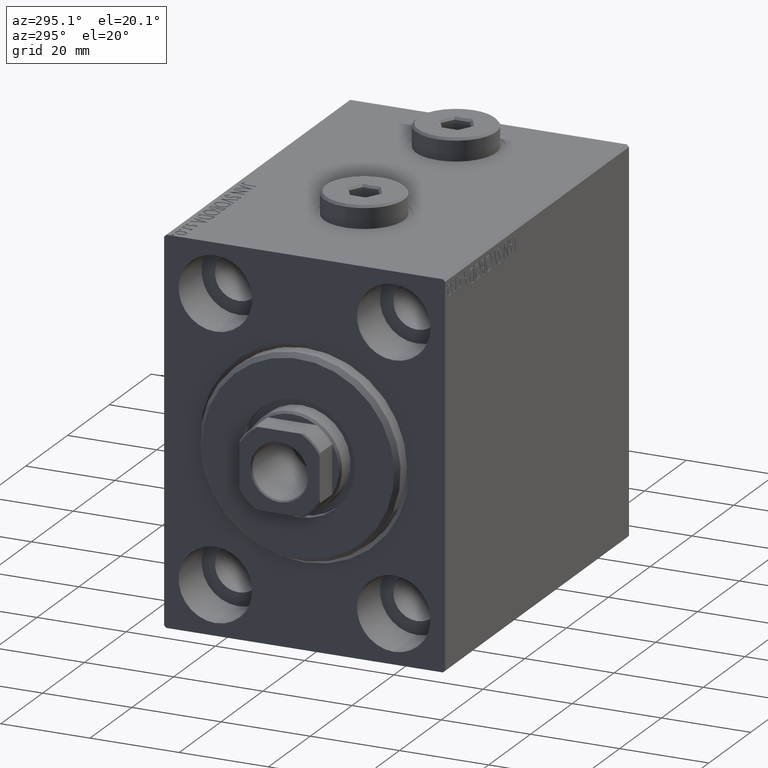
[diagram: clean part render]
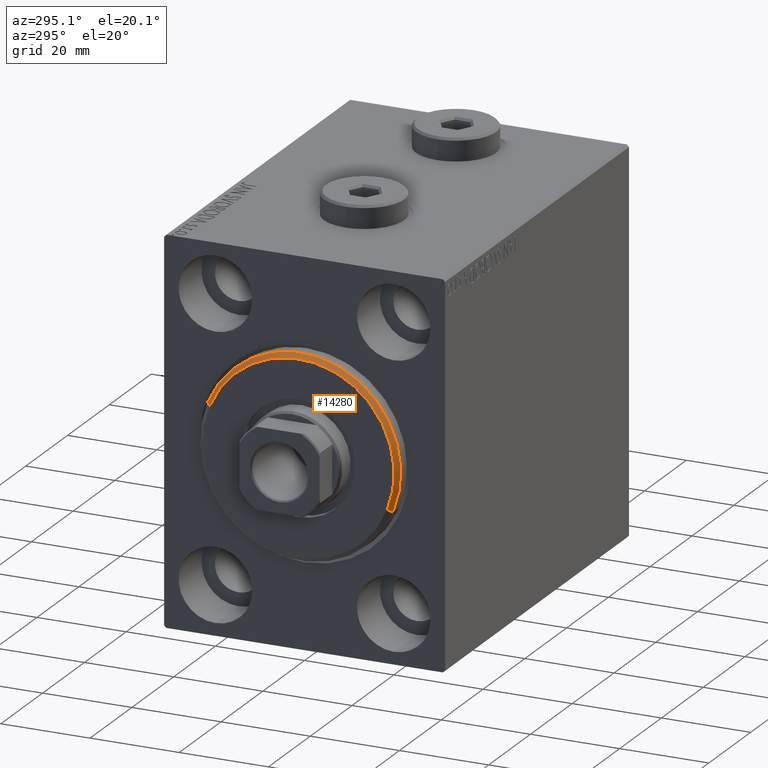
[diagram: same view with one face highlighted and labeled with its STEP entity id]
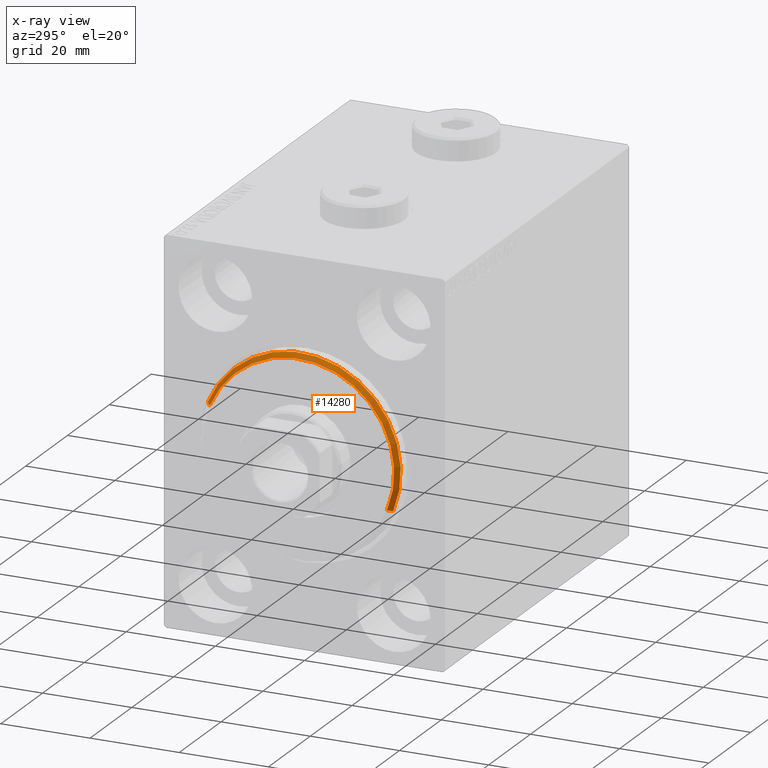
[diagram: x-ray of the same camera — body ghosted, the highlighted face saturated]
A machine part, auxiliary view. The second image highlights one B-rep face of the part: STEP entity #14280.
The next image is the same camera in x-ray: the body ghosted, the highlighted face saturated — about 0% of this face is hidden behind the body in this view.
In plain terms, the highlighted conical surface has half-angle 45 deg.
Its self-contained STEP definition (entity closure, byte-faithful):
#1107 = EDGE_CURVE ( 'NONE', #38930, #14992, #43931, .T. ) ;
#2019 = CARTESIAN_POINT ( 'NONE',  ( 1.999999999999999112, 2.755455298081545172E-15, -22.50000000000000355 ) ) ;
#4481 = DIRECTION ( 'NONE',  ( 0.000000000000000000, 0.000000000000000000, 1.000000000000000000 ) ) ;
#7680 = DIRECTION ( 'NONE',  ( -1.000000000000000000, 0.000000000000000000, 0.000000000000000000 ) ) ;
#8233 = EDGE_CURVE ( 'NONE', #11279, #14992, #8292, .T. ) ;
#8292 = CIRCLE ( 'NONE', #38231, 22.50000000000000355 ) ;
#11279 = VERTEX_POINT ( 'NONE', #2019 ) ;
#13276 = ORIENTED_EDGE ( 'NONE', *, *, #17114, .F. ) ;
#14280 = ADVANCED_FACE ( 'NONE', ( #28954 ), #23041, .T. ) ;
#14992 = VERTEX_POINT ( 'NONE', #15963 ) ;
#15963 = CARTESIAN_POINT ( 'NONE',  ( 1.999999999999999112, 0.000000000000000000, 22.50000000000000355 ) ) ;
#17114 = EDGE_CURVE ( 'NONE', #38930, #43309, #44282, .T. ) ;
#19620 = ORIENTED_EDGE ( 'NONE', *, *, #29865, .F. ) ;
#19896 = VECTOR ( 'NONE', #37072, 1000.000000000000000 ) ;
#23041 = CONICAL_SURFACE ( 'NONE', #43465, 21.50000000000000355, 0.7853981633974466137 ) ;
#23226 = VECTOR ( 'NONE', #44501, 1000.000000000000000 ) ;
#23301 = DIRECTION ( 'NONE',  ( 1.000000000000000000, -0.000000000000000000, 0.000000000000000000 ) ) ;
#25520 = CARTESIAN_POINT ( 'NONE',  ( 3.000000000000000000, 0.000000000000000000, 0.000000000000000000 ) ) ;
#26577 = CARTESIAN_POINT ( 'NONE',  ( 3.000000000000000000, 0.000000000000000000, 21.50000000000000355 ) ) ;
#28631 = DIRECTION ( 'NONE',  ( 0.000000000000000000, 0.000000000000000000, -1.000000000000000000 ) ) ;
#28954 = FACE_OUTER_BOUND ( 'NONE', #36901, .T. ) ;
#29865 = EDGE_CURVE ( 'NONE', #43309, #11279, #44726, .T. ) ;
#32383 = CARTESIAN_POINT ( 'NONE',  ( 3.000000000000000000, 2.694222958124177598E-15, -21.50000000000000355 ) ) ;
#33149 = DIRECTION ( 'NONE',  ( 0.000000000000000000, 0.000000000000000000, -1.000000000000000000 ) ) ;
#35698 = CARTESIAN_POINT ( 'NONE',  ( 1.999999999999999112, 0.000000000000000000, 0.000000000000000000 ) ) ;
#36633 = ORIENTED_EDGE ( 'NONE', *, *, #1107, .T. ) ;
#36779 = CARTESIAN_POINT ( 'NONE',  ( 3.000000000000000000, 0.000000000000000000, 0.000000000000000000 ) ) ;
#36901 = EDGE_LOOP ( 'NONE', ( #19620, #13276, #36633, #42351 ) ) ;
#37072 = DIRECTION ( 'NONE',  ( -0.7071067811865487940, 0.000000000000000000, 0.7071067811865463515 ) ) ;
#38231 = AXIS2_PLACEMENT_3D ( 'NONE', #35698, #42339, #28631 ) ;
#38930 = VERTEX_POINT ( 'NONE', #43600 ) ;
#40858 = CARTESIAN_POINT ( 'NONE',  ( 3.000000000000000000, 2.632990618166810024E-15, -21.50000000000000355 ) ) ;
#42339 = DIRECTION ( 'NONE',  ( -1.000000000000000000, 0.000000000000000000, 0.000000000000000000 ) ) ;
#42351 = ORIENTED_EDGE ( 'NONE', *, *, #8233, .F. ) ;
#43309 = VERTEX_POINT ( 'NONE', #32383 ) ;
#43465 = AXIS2_PLACEMENT_3D ( 'NONE', #25520, #7680, #4481 ) ;
#43600 = CARTESIAN_POINT ( 'NONE',  ( 3.000000000000000000, 0.000000000000000000, 21.50000000000000355 ) ) ;
#43931 = LINE ( 'NONE', #26577, #19896 ) ;
#44282 = CIRCLE ( 'NONE', #45001, 21.50000000000000355 ) ;
#44501 = DIRECTION ( 'NONE',  ( -0.7071067811865487940, 8.659560562354919300E-17, -0.7071067811865463515 ) ) ;
#44726 = LINE ( 'NONE', #40858, #23226 ) ;
#45001 = AXIS2_PLACEMENT_3D ( 'NONE', #36779, #23301, #33149 ) ;